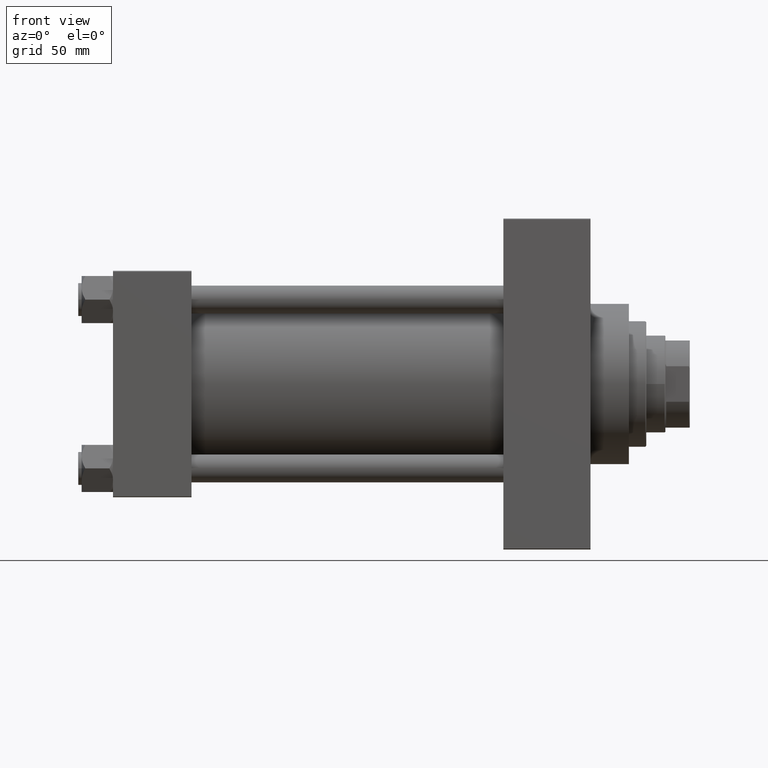
[diagram: clean part render]
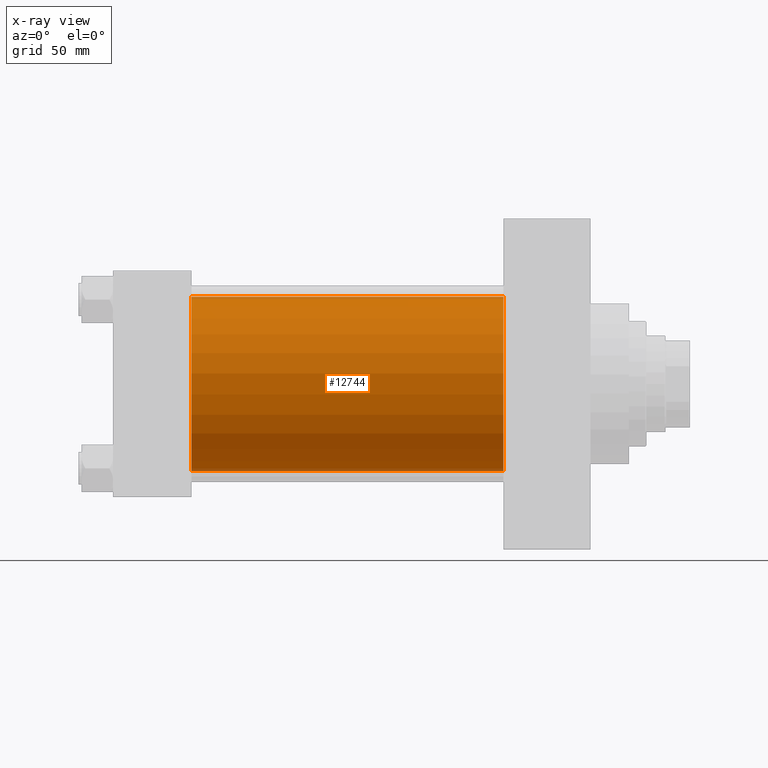
[diagram: x-ray — body ghosted, one internal face saturated and labeled with its STEP entity id]
A machine part, front view, then the same camera in x-ray: the body is ghosted and one INTERNAL B-rep face — a face not visible from any outside direction — is saturated and labeled: STEP entity #12744.
In plain terms, the highlighted cylindrical surface (partial cylindrical patch) has radius 50 mm, axis along (-1, -0, -0).
Its self-contained STEP definition (entity closure, byte-faithful):
#1389 = AXIS2_PLACEMENT_3D ( 'NONE', #15752, #45928, #16219 ) ;
#1633 = LINE ( 'NONE', #19961, #29784 ) ;
#4688 = DIRECTION ( 'NONE',  ( 1.000000000000000000, 0.000000000000000000, 0.000000000000000000 ) ) ;
#5706 = VERTEX_POINT ( 'NONE', #34040 ) ;
#8236 = VERTEX_POINT ( 'NONE', #46858 ) ;
#8448 = CARTESIAN_POINT ( 'NONE',  ( 223.9999999999999716, 3.521148781771554260E-15, -50.00000000000000000 ) ) ;
#12079 = DIRECTION ( 'NONE',  ( -1.000000000000000000, -0.000000000000000000, -0.000000000000000000 ) ) ;
#12329 = EDGE_CURVE ( 'NONE', #22845, #8236, #1633, .T. ) ;
#12744 = ADVANCED_FACE ( 'NONE', ( #45647 ), #20252, .F. ) ;
#15752 = CARTESIAN_POINT ( 'NONE',  ( 223.9999999999999716, -2.602085213965210642E-15, 0.000000000000000000 ) ) ;
#16219 = DIRECTION ( 'NONE',  ( 0.000000000000000000, 0.000000000000000000, -1.000000000000000000 ) ) ;
#17570 = ORIENTED_EDGE ( 'NONE', *, *, #37676, .T. ) ;
#19100 = CIRCLE ( 'NONE', #1389, 50.00000000000000000 ) ;
#19961 = CARTESIAN_POINT ( 'NONE',  ( 223.9999999999999716, -2.602085213965210642E-15, 50.00000000000000000 ) ) ;
#20252 = CYLINDRICAL_SURFACE ( 'NONE', #36869, 50.00000000000000000 ) ;
#20295 = EDGE_LOOP ( 'NONE', ( #17570, #39424, #43833, #31009 ) ) ;
#20315 = DIRECTION ( 'NONE',  ( 0.000000000000000000, 0.000000000000000000, -1.000000000000000000 ) ) ;
#21570 = CARTESIAN_POINT ( 'NONE',  ( 223.9999999999999716, -2.602085213965210642E-15, 50.00000000000000000 ) ) ;
#22845 = VERTEX_POINT ( 'NONE', #21570 ) ;
#23235 = CARTESIAN_POINT ( 'NONE',  ( 45.00000000000000000, -2.602085213965210642E-15, 0.000000000000000000 ) ) ;
#27700 = VECTOR ( 'NONE', #29528, 1000.000000000000000 ) ;
#29528 = DIRECTION ( 'NONE',  ( -1.000000000000000000, -0.000000000000000000, -0.000000000000000000 ) ) ;
#29784 = VECTOR ( 'NONE', #38344, 1000.000000000000000 ) ;
#31009 = ORIENTED_EDGE ( 'NONE', *, *, #12329, .F. ) ;
#33787 = AXIS2_PLACEMENT_3D ( 'NONE', #23235, #4688, #20315 ) ;
#34040 = CARTESIAN_POINT ( 'NONE',  ( 45.00000000000000000, 3.521148781771554260E-15, -50.00000000000000000 ) ) ;
#35330 = CIRCLE ( 'NONE', #33787, 50.00000000000000000 ) ;
#36869 = AXIS2_PLACEMENT_3D ( 'NONE', #37936, #12079, #38630 ) ;
#37676 = EDGE_CURVE ( 'NONE', #22845, #46045, #19100, .T. ) ;
#37936 = CARTESIAN_POINT ( 'NONE',  ( 223.9999999999999716, -2.602085213965210642E-15, 0.000000000000000000 ) ) ;
#38344 = DIRECTION ( 'NONE',  ( -1.000000000000000000, -0.000000000000000000, -0.000000000000000000 ) ) ;
#38436 = EDGE_CURVE ( 'NONE', #8236, #5706, #35330, .T. ) ;
#38630 = DIRECTION ( 'NONE',  ( 0.000000000000000000, 0.000000000000000000, 1.000000000000000000 ) ) ;
#39424 = ORIENTED_EDGE ( 'NONE', *, *, #44518, .T. ) ;
#43833 = ORIENTED_EDGE ( 'NONE', *, *, #38436, .F. ) ;
#44485 = CARTESIAN_POINT ( 'NONE',  ( 223.9999999999999716, 3.521148781771554260E-15, -50.00000000000000000 ) ) ;
#44518 = EDGE_CURVE ( 'NONE', #46045, #5706, #47392, .T. ) ;
#45647 = FACE_OUTER_BOUND ( 'NONE', #20295, .T. ) ;
#45928 = DIRECTION ( 'NONE',  ( 1.000000000000000000, 0.000000000000000000, 0.000000000000000000 ) ) ;
#46045 = VERTEX_POINT ( 'NONE', #8448 ) ;
#46858 = CARTESIAN_POINT ( 'NONE',  ( 45.00000000000000000, -2.602085213965210642E-15, 50.00000000000000000 ) ) ;
#47392 = LINE ( 'NONE', #44485, #27700 ) ;